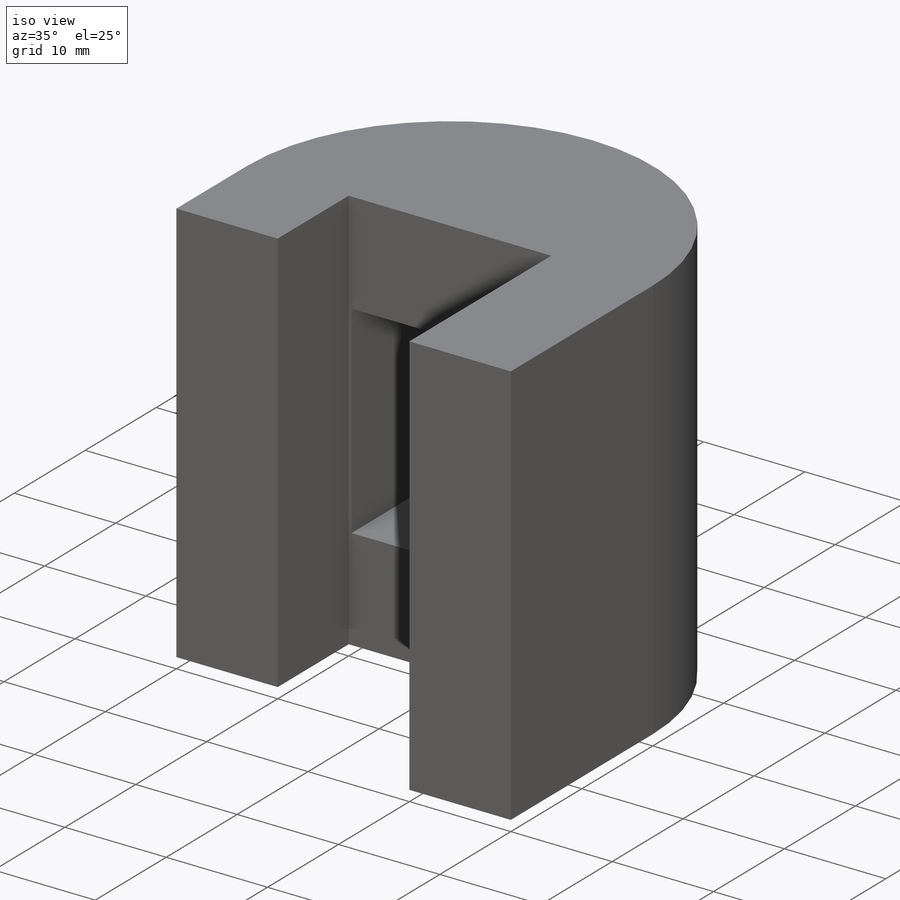
[diagram: iso view]
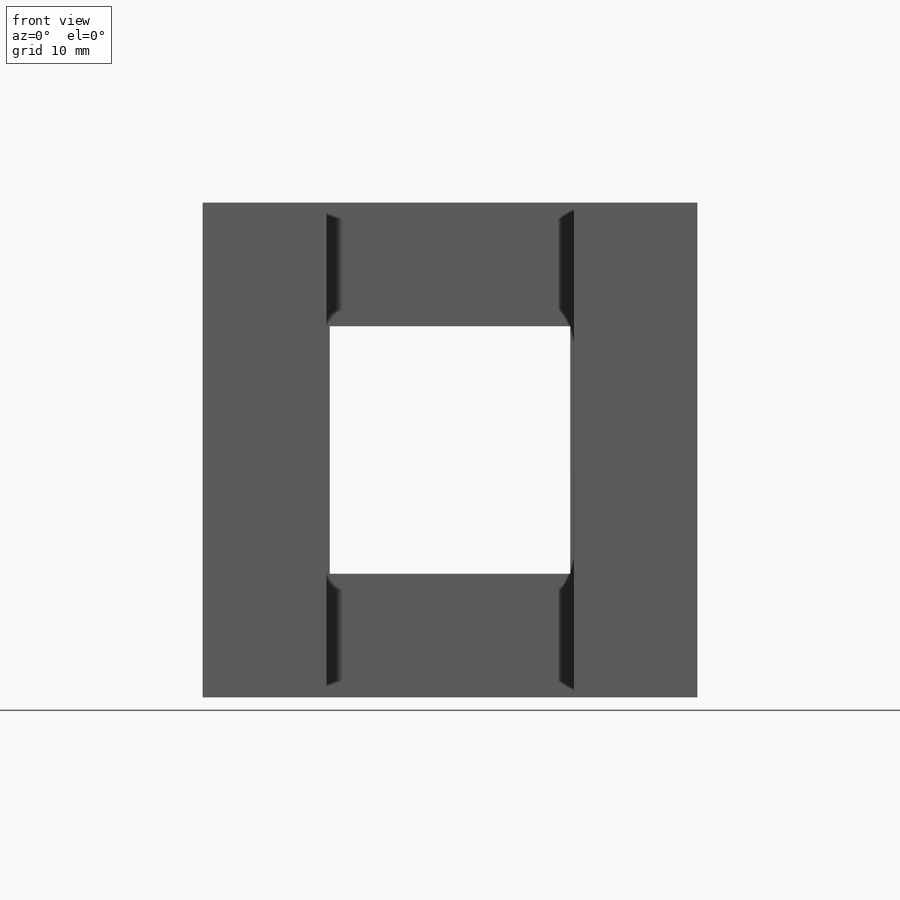
[diagram: front view]
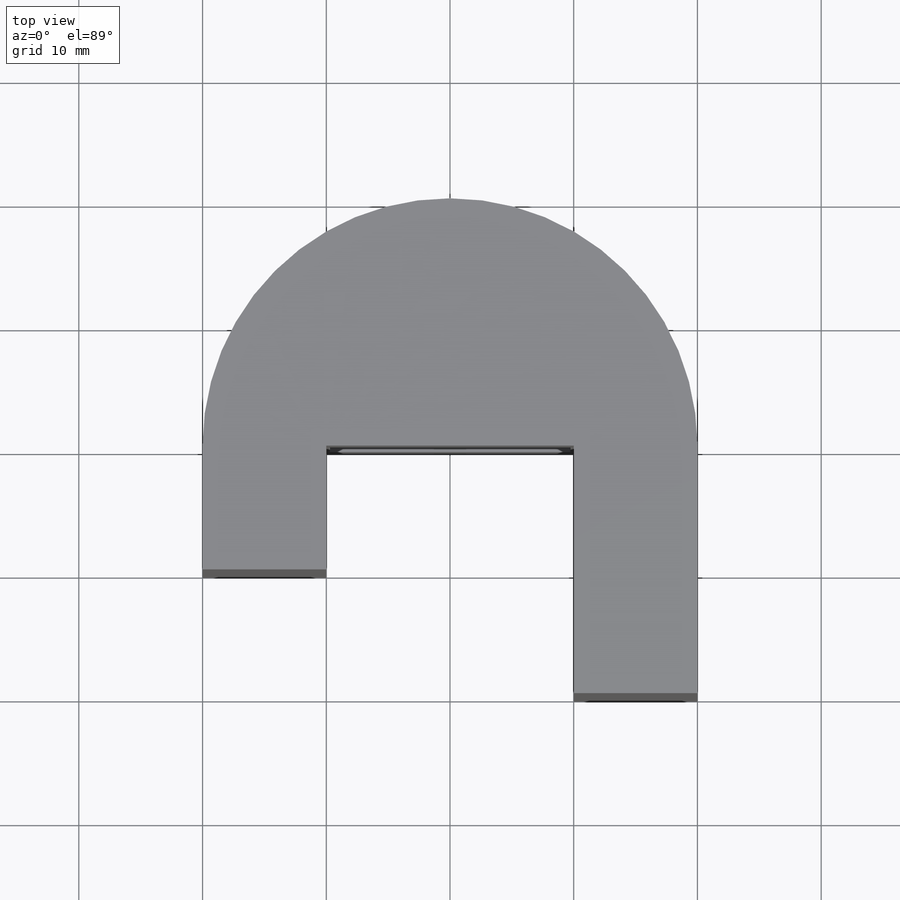
[diagram: top view]
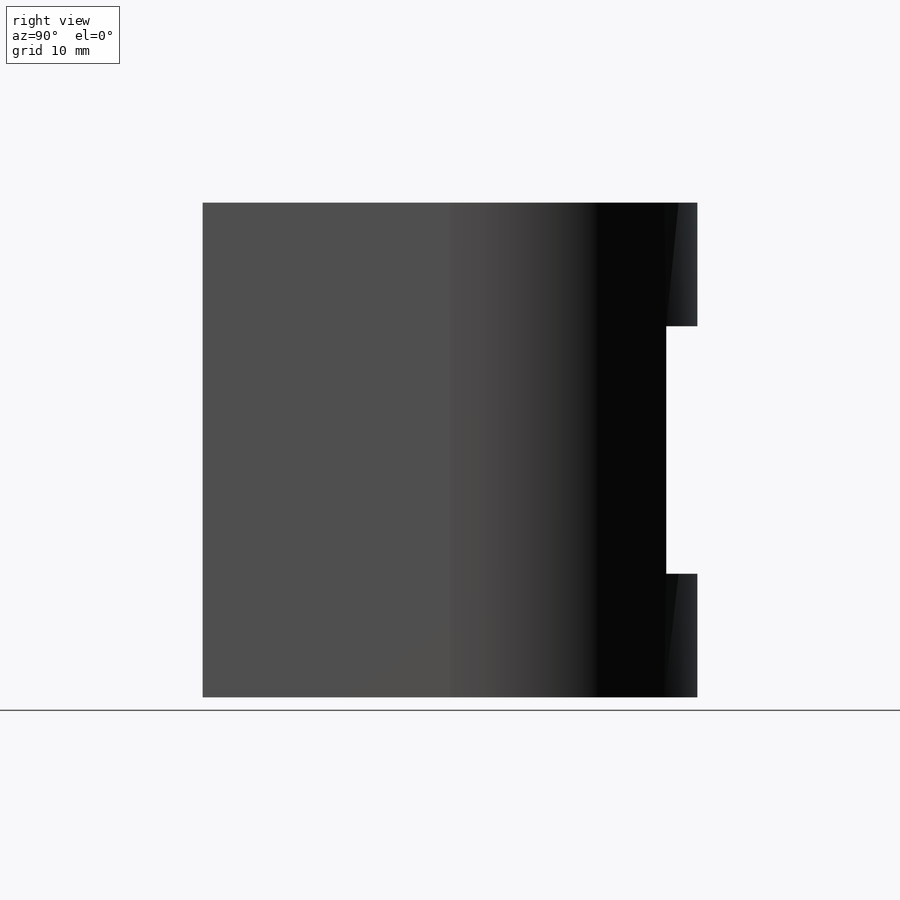
[diagram: right view]
SOLIDWORKS PART (.sldprt)
format: sldprt  version: not decoded by parser v0  size: 198,144 bytes
history: native  units: mm
features: sketch x6, cut_extrude x5, material x1, extrude x1, plane x1 (+13 scaffold rows collapsed)
feature tree (27):
  scaffold x13  (default folders/planes/origin — collapsed)
  material  "Material <not specified>"
  sketch  "Sketch1"  dims[c1.D1=~61.080173mm c1.D2=~50.396182mm c2.D1=40.0mm c2.D2=40.0mm]
  extrude  "Boss-Extrude1"  Depth=40mm
  sketch  "Sketch2"  dims[c1.D1=20.0mm c1.D6=20.0mm c2.D1=~7.330538mm c2.D2=20.0mm c2.D3=20.0mm c2.D4=10.0mm c2.D5=20.0mm c2.D6=10.0mm c2.D7=20.0mm]
  cut_extrude  "Cut-Extrude1"  Depth=40mm
  sketch  "Sketch3"  dims[c1.D1=~10.955353mm c1.D2=~3.981945mm c2.D1=2.0mm c2.D2=0.0mm c2.D3=10.0mm c2.D4=20.0mm]
  cut_extrude  "Cut-Extrude2"  Depth=40mm
  plane  "Plane1"  Offset=30mm
  sketch  "Sketch5"  dims[D1=~17.435596mm]
  cut_extrude  "Cut-Extrude4"  Depth=20mm
  sketch  "Sketch9"  dims[D1=20.0mm D2=18.0mm]
  cut_extrude  "Cut-Extrude7"  Depth=1mm
  sketch  "Sketch10"  dims[D1=20.0mm D2=18.0mm]
  cut_extrude  "Cut-Extrude8"  Depth=1mm
decode coverage: 12 of 12 modeling features carry decoded parameters
note: ~ marks probable driven/reference dimensions
note: suppression state not decoded; provenance and decode notes live in map.json
